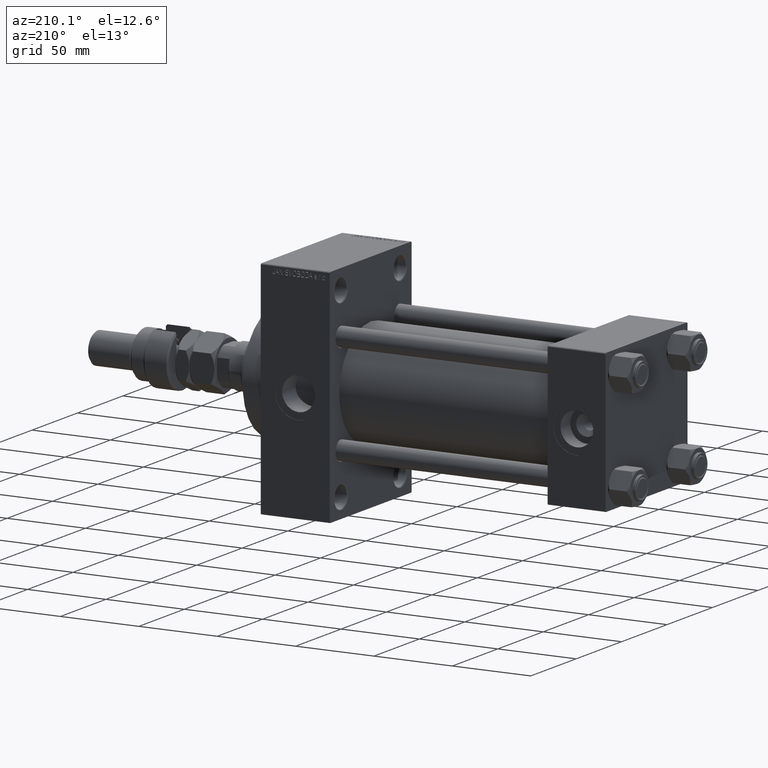
[diagram: clean part render]
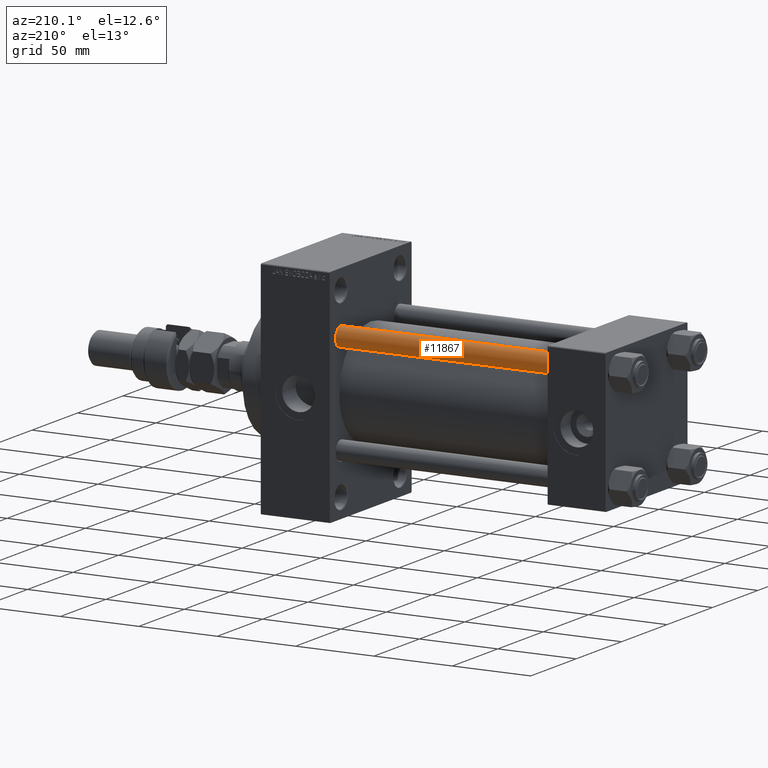
[diagram: same view with one face highlighted and labeled with its STEP entity id]
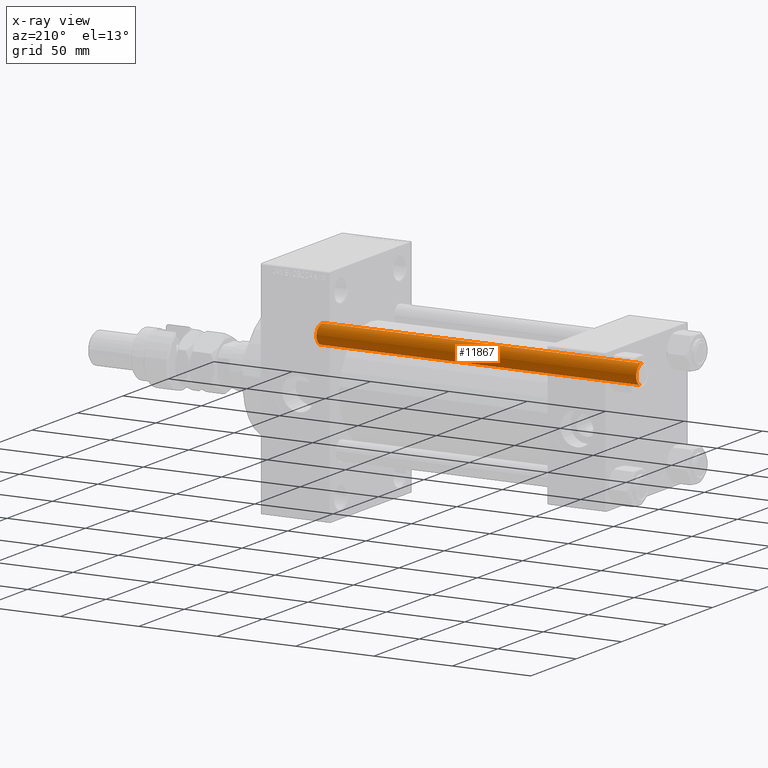
[diagram: x-ray of the same camera — body ghosted, the highlighted face saturated]
A machine part, auxiliary view. The second image highlights one B-rep face of the part: STEP entity #11867.
The next image is the same camera in x-ray: the body ghosted, the highlighted face saturated — about 0% of this face is hidden behind the body in this view.
In plain terms, the highlighted cylindrical surface (edge-blend (fillet) strip) has radius 6 mm, axis along (-1, -0, 0).
Its self-contained STEP definition (entity closure, byte-faithful):
#28 = FACE_OUTER_BOUND ( 'NONE', #20938, .T. ) ;
#278 = DIRECTION ( 'NONE',  ( -1.000000000000000000, 0.000000000000000000, 0.000000000000000000 ) ) ;
#1483 = EDGE_CURVE ( 'NONE', #17798, #44209, #27972, .T. ) ;
#5692 = EDGE_CURVE ( 'NONE', #17798, #20173, #29536, .T. ) ;
#9214 = CARTESIAN_POINT ( 'NONE',  ( -6.000000000000000888, 0.000000000000000000, 205.0000000000000000 ) ) ;
#10931 = ORIENTED_EDGE ( 'NONE', *, *, #5692, .T. ) ;
#11101 = ORIENTED_EDGE ( 'NONE', *, *, #46406, .T. ) ;
#11152 = CARTESIAN_POINT ( 'NONE',  ( 0.000000000000000000, 0.000000000000000000, 205.0000000000000000 ) ) ;
#11867 = ADVANCED_FACE ( 'NONE', ( #28 ), #30914, .T. ) ;
#13225 = DIRECTION ( 'NONE',  ( -0.000000000000000000, -0.000000000000000000, -1.000000000000000000 ) ) ;
#14964 = DIRECTION ( 'NONE',  ( -0.000000000000000000, -0.000000000000000000, -1.000000000000000000 ) ) ;
#14985 = AXIS2_PLACEMENT_3D ( 'NONE', #22214, #37676, #15360 ) ;
#15093 = CARTESIAN_POINT ( 'NONE',  ( -6.000000000000000888, 0.000000000000000000, 204.5000000000000568 ) ) ;
#15360 = DIRECTION ( 'NONE',  ( 1.000000000000000000, 0.000000000000000000, 0.000000000000000000 ) ) ;
#16014 = AXIS2_PLACEMENT_3D ( 'NONE', #11152, #14964, #278 ) ;
#17798 = VERTEX_POINT ( 'NONE', #15093 ) ;
#20012 = CARTESIAN_POINT ( 'NONE',  ( -6.000000000000000888, 0.000000000000000000, 0.5000000000001114664 ) ) ;
#20173 = VERTEX_POINT ( 'NONE', #20897 ) ;
#20897 = CARTESIAN_POINT ( 'NONE',  ( 6.000000000000000888, 7.347880794884119736E-16, 204.5000000000000568 ) ) ;
#20938 = EDGE_LOOP ( 'NONE', ( #10931, #28470, #11101, #47767 ) ) ;
#22214 = CARTESIAN_POINT ( 'NONE',  ( 0.000000000000000000, 0.000000000000000000, 0.5000000000001114664 ) ) ;
#23322 = DIRECTION ( 'NONE',  ( 1.000000000000000000, 0.000000000000000000, 0.000000000000000000 ) ) ;
#27119 = CARTESIAN_POINT ( 'NONE',  ( 0.000000000000000000, 0.000000000000000000, 204.5000000000000568 ) ) ;
#27972 = LINE ( 'NONE', #9214, #47274 ) ;
#28469 = DIRECTION ( 'NONE',  ( -0.000000000000000000, -0.000000000000000000, -1.000000000000000000 ) ) ;
#28470 = ORIENTED_EDGE ( 'NONE', *, *, #48543, .T. ) ;
#29536 = CIRCLE ( 'NONE', #45691, 6.000000000000000888 ) ;
#30914 = CYLINDRICAL_SURFACE ( 'NONE', #16014, 6.000000000000000888 ) ;
#31737 = LINE ( 'NONE', #43632, #33678 ) ;
#33678 = VECTOR ( 'NONE', #13225, 1000.000000000000000 ) ;
#36448 = VERTEX_POINT ( 'NONE', #37324 ) ;
#36818 = CIRCLE ( 'NONE', #14985, 6.000000000000000888 ) ;
#37324 = CARTESIAN_POINT ( 'NONE',  ( 6.000000000000000888, 7.347880794884119736E-16, 0.5000000000001114664 ) ) ;
#37676 = DIRECTION ( 'NONE',  ( -0.000000000000000000, -0.000000000000000000, 1.000000000000000000 ) ) ;
#38038 = DIRECTION ( 'NONE',  ( 0.000000000000000000, 0.000000000000000000, -1.000000000000000000 ) ) ;
#43632 = CARTESIAN_POINT ( 'NONE',  ( 6.000000000000000888, 7.347880794884119736E-16, 205.0000000000000000 ) ) ;
#44209 = VERTEX_POINT ( 'NONE', #20012 ) ;
#45691 = AXIS2_PLACEMENT_3D ( 'NONE', #27119, #38038, #23322 ) ;
#46406 = EDGE_CURVE ( 'NONE', #36448, #44209, #36818, .T. ) ;
#47274 = VECTOR ( 'NONE', #28469, 1000.000000000000000 ) ;
#47767 = ORIENTED_EDGE ( 'NONE', *, *, #1483, .F. ) ;
#48543 = EDGE_CURVE ( 'NONE', #20173, #36448, #31737, .T. ) ;